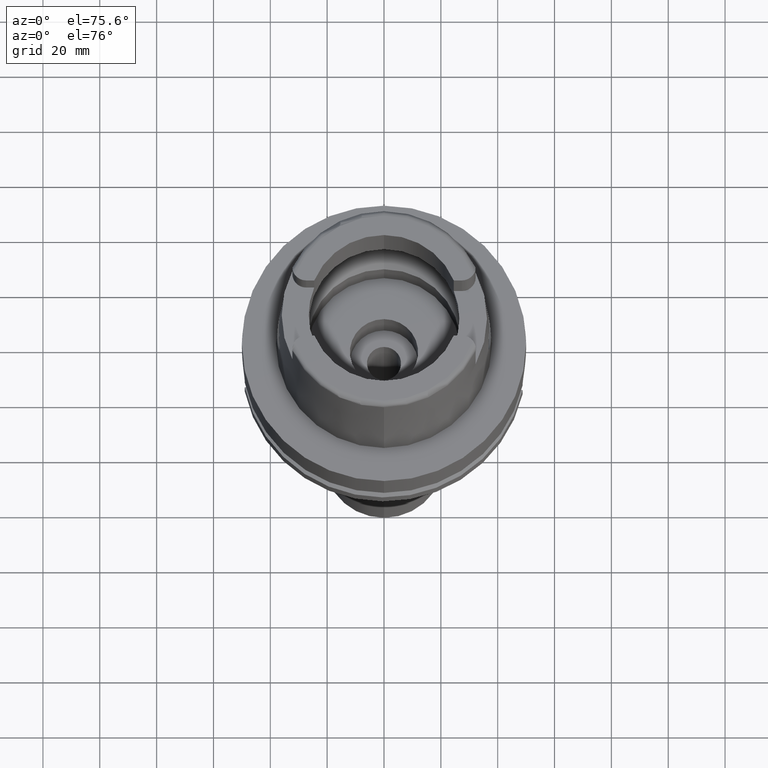
[diagram: clean part render]
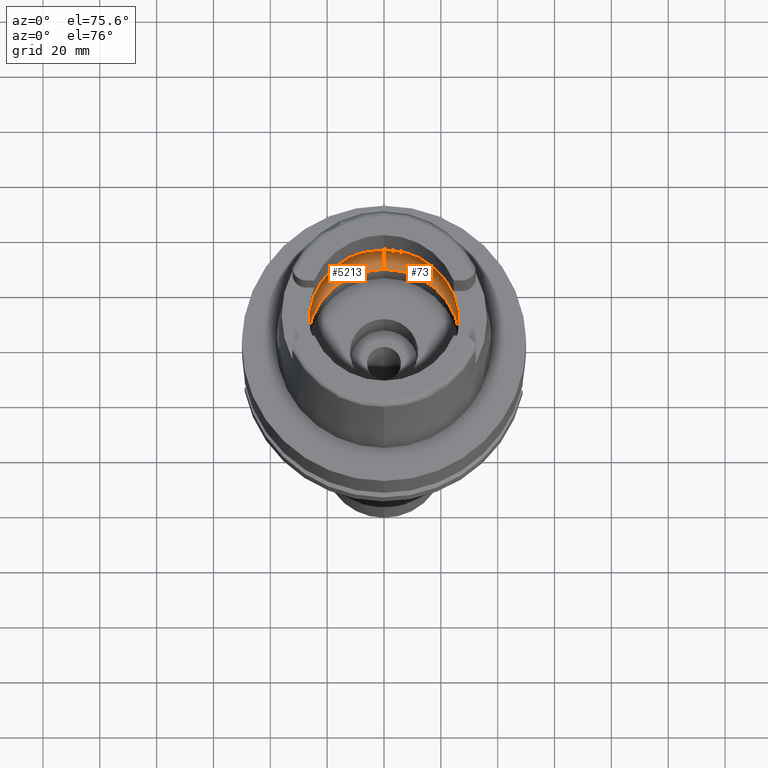
[diagram: same view with one multi-face feature highlighted, each face labeled with its STEP entity id]
A machine part, auxiliary view. The highlighted faces form ONE feature: a constant-radius fillet chain: 2 tangent blend faces with common blend radius 12 mm. The faces share edges in the B-rep.
Their STEP definitions:
[1] entity #73 (Torus):
#1 = AXIS2_PLACEMENT_3D ( 'NONE', #3776, #5508, #3349 ) ;
#73 = ADVANCED_FACE ( 'NONE', ( #1263 ), #2150, .F. ) ;
#99 = ORIENTED_EDGE ( 'NONE', *, *, #4437, .F. ) ;
#165 = AXIS2_PLACEMENT_3D ( 'NONE', #786, #5049, #2897 ) ;
#277 = VERTEX_POINT ( 'NONE', #5559 ) ;
#291 = DIRECTION ( 'NONE',  ( 0.0000000000000000000, 0.0000000000000000000, -1.000000000000000000 ) ) ;
#375 = EDGE_CURVE ( 'NONE', #4504, #3929, #483, .T. ) ;
#483 = B_SPLINE_CURVE_WITH_KNOTS ( 'NONE', 3,
 ( #3632, #4847, #2784, #4060, #5356, #1014 ),
 .UNSPECIFIED., .F., .F.,
 ( 4, 1, 1, 4 ),
 ( 0.0000000000000000000, 0.3333333333333000081, 0.6666666666667000474, 1.000000000000000000 ),
 .UNSPECIFIED. ) ;
#587 = CARTESIAN_POINT ( 'NONE',  ( 31.40918884336000616, -2.390158196043999705, 9.496624327025999790 ) ) ;
#747 = CARTESIAN_POINT ( 'NONE',  ( 0.0000000000000000000, 0.0000000000000000000, 9.496624327025999790 ) ) ;
#786 = CARTESIAN_POINT ( 'NONE',  ( 0.0000000000000000000, -19.50000000000000000, 9.496624327025999790 ) ) ;
#1014 = CARTESIAN_POINT ( 'NONE',  ( 31.48971910754000447, 0.0000000000000000000, 9.000000000000000000 ) ) ;
#1090 = DIRECTION ( 'NONE',  ( 0.0000000000000000000, 1.000000000000000000, 0.0000000000000000000 ) ) ;
#1150 = CARTESIAN_POINT ( 'NONE',  ( 31.48971910754000447, 0.0000000000000000000, 9.000000000000000000 ) ) ;
#1225 = CARTESIAN_POINT ( 'NONE',  ( 31.45843229728999901, -1.626122314408000147, 9.205188491873000700 ) ) ;
#1263 = FACE_OUTER_BOUND ( 'NONE', #4660, .T. ) ;
#1266 = CIRCLE ( 'NONE', #1812, 31.50000000000000000 ) ;
#1564 = CARTESIAN_POINT ( 'NONE',  ( 0.0000000000000000000, 19.50000000000000000, 9.496624327025999790 ) ) ;
#1574 = ORIENTED_EDGE ( 'NONE', *, *, #3975, .F. ) ;
#1739 = VERTEX_POINT ( 'NONE', #4050 ) ;
#1801 = AXIS2_PLACEMENT_3D ( 'NONE', #747, #291, #4168 ) ;
#1812 = AXIS2_PLACEMENT_3D ( 'NONE', #2779, #4446, #1090 ) ;
#1982 = CIRCLE ( 'NONE', #1, 26.89999999999999858 ) ;
#2002 = CARTESIAN_POINT ( 'NONE',  ( 31.48971910754000447, -0.2740816369240999806, 9.000000000000000000 ) ) ;
#2047 = ORIENTED_EDGE ( 'NONE', *, *, #2710, .T. ) ;
#2150 = TOROIDAL_SURFACE ( 'NONE', #4494, 19.50000000000000000, 12.00000000000000000 ) ;
#2170 = ORIENTED_EDGE ( 'NONE', *, *, #4078, .F. ) ;
#2270 = CARTESIAN_POINT ( 'NONE',  ( 0.0000000000000000000, -26.89999999999999858, 0.04993178413023999923 ) ) ;
#2375 = VERTEX_POINT ( 'NONE', #2461 ) ;
#2431 = AXIS2_PLACEMENT_3D ( 'NONE', #1564, #3278, #4957 ) ;
#2461 = CARTESIAN_POINT ( 'NONE',  ( 0.0000000000000000000, 26.89999999999999858, 0.04993178413023999923 ) ) ;
#2564 = DIRECTION ( 'NONE',  ( 0.0000000000000000000, 1.000000000000000000, 0.0000000000000000000 ) ) ;
#2597 = CIRCLE ( 'NONE', #165, 11.99999999999999822 ) ;
#2627 = CARTESIAN_POINT ( 'NONE',  ( 0.0000000000000000000, 0.0000000000000000000, 9.496624327025999790 ) ) ;
#2649 = EDGE_CURVE ( 'NONE', #3929, #4357, #5022, .T. ) ;
#2710 = EDGE_CURVE ( 'NONE', #3096, #1739, #2597, .T. ) ;
#2779 = CARTESIAN_POINT ( 'NONE',  ( 0.0000000000000000000, 0.0000000000000000000, 9.496624327025999790 ) ) ;
#2784 = CARTESIAN_POINT ( 'NONE',  ( 31.45843215351000310, 1.626125992769999806, 9.205189397203000112 ) ) ;
#2897 = DIRECTION ( 'NONE',  ( 0.0000000000000000000, -0.6166666666667049990, -0.7872243785746061429 ) ) ;
#2952 = CARTESIAN_POINT ( 'NONE',  ( 31.42817542026000410, -2.140654635826999996, 9.388263020288000860 ) ) ;
#3096 = VERTEX_POINT ( 'NONE', #2270 ) ;
#3278 = DIRECTION ( 'NONE',  ( 1.000000000000000000, 0.0000000000000000000, 0.0000000000000000000 ) ) ;
#3349 = DIRECTION ( 'NONE',  ( 0.0000000000000000000, -1.000000000000000000, 0.0000000000000000000 ) ) ;
#3403 = DIRECTION ( 'NONE',  ( 0.0000000000000000000, 0.0000000000000000000, 1.000000000000000000 ) ) ;
#3412 = CIRCLE ( 'NONE', #1801, 31.49999999999998934 ) ;
#3632 = CARTESIAN_POINT ( 'NONE',  ( 31.40918884336000616, 2.390158196043999705, 9.496624327025999790 ) ) ;
#3776 = CARTESIAN_POINT ( 'NONE',  ( 0.0000000000000000000, 0.0000000000000000000, 0.04993178413023999923 ) ) ;
#3855 = ORIENTED_EDGE ( 'NONE', *, *, #5178, .F. ) ;
#3929 = VERTEX_POINT ( 'NONE', #5441 ) ;
#3975 = EDGE_CURVE ( 'NONE', #2375, #277, #4051, .T. ) ;
#3980 = CARTESIAN_POINT ( 'NONE',  ( 31.40918884336000616, 2.390158196043999705, 9.496624327025999790 ) ) ;
#4050 = CARTESIAN_POINT ( 'NONE',  ( 0.0000000000000000000, -31.50000000000000000, 9.496624327025999790 ) ) ;
#4051 = CIRCLE ( 'NONE', #2431, 11.99999999999999822 ) ;
#4060 = CARTESIAN_POINT ( 'NONE',  ( 31.48416663622000300, 0.8216256622719000369, 9.037606172252001357 ) ) ;
#4078 = EDGE_CURVE ( 'NONE', #4357, #1739, #3412, .T. ) ;
#4168 = DIRECTION ( 'NONE',  ( 0.9971171061384295209, -0.07587803796965221503, 0.0000000000000000000 ) ) ;
#4276 = ORIENTED_EDGE ( 'NONE', *, *, #2649, .F. ) ;
#4357 = VERTEX_POINT ( 'NONE', #587 ) ;
#4437 = EDGE_CURVE ( 'NONE', #3096, #2375, #1982, .T. ) ;
#4446 = DIRECTION ( 'NONE',  ( 0.0000000000000000000, 0.0000000000000000000, -1.000000000000000000 ) ) ;
#4494 = AXIS2_PLACEMENT_3D ( 'NONE', #2627, #3403, #2564 ) ;
#4504 = VERTEX_POINT ( 'NONE', #3980 ) ;
#4660 = EDGE_LOOP ( 'NONE', ( #5474, #3855, #1574, #99, #2047, #2170, #4276 ) ) ;
#4674 = CARTESIAN_POINT ( 'NONE',  ( 31.40918884336000616, -2.390158196043999705, 9.496624327025999790 ) ) ;
#4847 = CARTESIAN_POINT ( 'NONE',  ( 31.42817530553000083, 2.140656143518000487, 9.388263675090000149 ) ) ;
#4957 = DIRECTION ( 'NONE',  ( 0.0000000000000000000, 0.6166666666667049990, -0.7872243785746061429 ) ) ;
#5022 = B_SPLINE_CURVE_WITH_KNOTS ( 'NONE', 3,
 ( #1150, #2002, #5475, #1225, #2952, #4674 ),
 .UNSPECIFIED., .F., .F.,
 ( 4, 1, 1, 4 ),
 ( 0.0000000000000000000, 0.3333333333333000081, 0.6666666666667000474, 1.000000000000000000 ),
 .UNSPECIFIED. ) ;
#5049 = DIRECTION ( 'NONE',  ( -1.000000000000000000, 0.0000000000000000000, 0.0000000000000000000 ) ) ;
#5178 = EDGE_CURVE ( 'NONE', #277, #4504, #1266, .T. ) ;
#5356 = CARTESIAN_POINT ( 'NONE',  ( 31.48971910754000447, 0.2740808193429000172, 9.000000000000000000 ) ) ;
#5441 = CARTESIAN_POINT ( 'NONE',  ( 31.48971910754000447, 0.0000000000000000000, 9.000000000000000000 ) ) ;
#5474 = ORIENTED_EDGE ( 'NONE', *, *, #375, .F. ) ;
#5475 = CARTESIAN_POINT ( 'NONE',  ( 31.48416657243999950, -0.8216274657312000462, 9.037606582851999804 ) ) ;
#5508 = DIRECTION ( 'NONE',  ( 0.0000000000000000000, 0.0000000000000000000, 1.000000000000000000 ) ) ;
#5559 = CARTESIAN_POINT ( 'NONE',  ( 0.0000000000000000000, 31.50000000000000000, 9.496624327025999790 ) ) ;
[2] entity #5213 (Torus):
#7 = ORIENTED_EDGE ( 'NONE', *, *, #4390, .F. ) ;
#21 = CARTESIAN_POINT ( 'NONE',  ( -31.48971910754000447, 0.0000000000000000000, 9.000000000000000000 ) ) ;
#119 = EDGE_CURVE ( 'NONE', #4056, #277, #3864, .T. ) ;
#128 = CARTESIAN_POINT ( 'NONE',  ( -31.45843235400999660, -1.626121130666000170, 9.205188134635001518 ) ) ;
#165 = AXIS2_PLACEMENT_3D ( 'NONE', #786, #5049, #2897 ) ;
#238 = EDGE_LOOP ( 'NONE', ( #3280, #4169, #1729, #4026, #2783, #7, #1229 ) ) ;
#277 = VERTEX_POINT ( 'NONE', #5559 ) ;
#319 = CARTESIAN_POINT ( 'NONE',  ( 0.0000000000000000000, 0.0000000000000000000, 0.04993178413023999923 ) ) ;
#331 = CARTESIAN_POINT ( 'NONE',  ( -31.42817526838999953, 2.140656631636999929, 9.388263887083001080 ) ) ;
#534 = CARTESIAN_POINT ( 'NONE',  ( 0.0000000000000000000, 0.0000000000000000000, 9.496624327025999790 ) ) ;
#589 = EDGE_CURVE ( 'NONE', #2375, #3096, #4776, .T. ) ;
#786 = CARTESIAN_POINT ( 'NONE',  ( 0.0000000000000000000, -19.50000000000000000, 9.496624327025999790 ) ) ;
#787 = CARTESIAN_POINT ( 'NONE',  ( -31.40918884336000616, 2.390158196043999705, 9.496624327025999790 ) ) ;
#876 = CARTESIAN_POINT ( 'NONE',  ( -31.40918884336000616, -2.390158196043999705, 9.496624327025999790 ) ) ;
#1035 = VERTEX_POINT ( 'NONE', #876 ) ;
#1114 = DIRECTION ( 'NONE',  ( 0.0000000000000000000, 1.000000000000000000, 0.0000000000000000000 ) ) ;
#1229 = ORIENTED_EDGE ( 'NONE', *, *, #3786, .F. ) ;
#1291 = DIRECTION ( 'NONE',  ( -0.9971171061384295209, 0.07587803796965221503, 0.0000000000000000000 ) ) ;
#1390 = VERTEX_POINT ( 'NONE', #2731 ) ;
#1480 = CARTESIAN_POINT ( 'NONE',  ( -31.40918884336000616, 2.390158196043999705, 9.496624327025999790 ) ) ;
#1564 = CARTESIAN_POINT ( 'NONE',  ( 0.0000000000000000000, 19.50000000000000000, 9.496624327025999790 ) ) ;
#1627 = TOROIDAL_SURFACE ( 'NONE', #5150, 19.50000000000000000, 12.00000000000000000 ) ;
#1729 = ORIENTED_EDGE ( 'NONE', *, *, #589, .F. ) ;
#1739 = VERTEX_POINT ( 'NONE', #4050 ) ;
#1914 = B_SPLINE_CURVE_WITH_KNOTS ( 'NONE', 3,
 ( #3831, #4675, #3321, #5562, #331, #787 ),
 .UNSPECIFIED., .F., .F.,
 ( 4, 1, 1, 4 ),
 ( 0.0000000000000000000, 0.3333333333333000081, 0.6666666666667000474, 1.000000000000000000 ),
 .UNSPECIFIED. ) ;
#2270 = CARTESIAN_POINT ( 'NONE',  ( 0.0000000000000000000, -26.89999999999999858, 0.04993178413023999923 ) ) ;
#2375 = VERTEX_POINT ( 'NONE', #2461 ) ;
#2388 = DIRECTION ( 'NONE',  ( 0.0000000000000000000, 1.000000000000000000, 0.0000000000000000000 ) ) ;
#2431 = AXIS2_PLACEMENT_3D ( 'NONE', #1564, #3278, #4957 ) ;
#2439 = CIRCLE ( 'NONE', #5419, 31.50000000000000000 ) ;
#2459 = DIRECTION ( 'NONE',  ( 0.0000000000000000000, 0.0000000000000000000, -1.000000000000000000 ) ) ;
#2461 = CARTESIAN_POINT ( 'NONE',  ( 0.0000000000000000000, 26.89999999999999858, 0.04993178413023999923 ) ) ;
#2597 = CIRCLE ( 'NONE', #165, 11.99999999999999822 ) ;
#2701 = AXIS2_PLACEMENT_3D ( 'NONE', #319, #3258, #1114 ) ;
#2710 = EDGE_CURVE ( 'NONE', #3096, #1739, #2597, .T. ) ;
#2731 = CARTESIAN_POINT ( 'NONE',  ( -31.48971910754000447, 0.0000000000000000000, 9.000000000000000000 ) ) ;
#2783 = ORIENTED_EDGE ( 'NONE', *, *, #119, .F. ) ;
#2897 = DIRECTION ( 'NONE',  ( 0.0000000000000000000, -0.6166666666667049990, -0.7872243785746061429 ) ) ;
#3051 = AXIS2_PLACEMENT_3D ( 'NONE', #534, #3948, #1291 ) ;
#3070 = CARTESIAN_POINT ( 'NONE',  ( -31.48416659375000037, -0.8216262390445000507, 9.037606438216000626 ) ) ;
#3096 = VERTEX_POINT ( 'NONE', #2270 ) ;
#3258 = DIRECTION ( 'NONE',  ( 0.0000000000000000000, 0.0000000000000000000, 1.000000000000000000 ) ) ;
#3278 = DIRECTION ( 'NONE',  ( 1.000000000000000000, 0.0000000000000000000, 0.0000000000000000000 ) ) ;
#3280 = ORIENTED_EDGE ( 'NONE', *, *, #4419, .F. ) ;
#3321 = CARTESIAN_POINT ( 'NONE',  ( -31.48416661469000033, 0.8216269012393999649, 9.037606318336999678 ) ) ;
#3595 = FACE_OUTER_BOUND ( 'NONE', #238, .T. ) ;
#3786 = EDGE_CURVE ( 'NONE', #1035, #1390, #3897, .T. ) ;
#3831 = CARTESIAN_POINT ( 'NONE',  ( -31.48971910754000447, 0.0000000000000000000, 9.000000000000000000 ) ) ;
#3864 = CIRCLE ( 'NONE', #3051, 31.49999999999998934 ) ;
#3886 = CARTESIAN_POINT ( 'NONE',  ( -31.48971910754000447, -0.2740811097498000448, 9.000000000000000000 ) ) ;
#3897 = B_SPLINE_CURVE_WITH_KNOTS ( 'NONE', 3,
 ( #4844, #3972, #128, #3070, #3886, #21 ),
 .UNSPECIFIED., .F., .F.,
 ( 4, 1, 1, 4 ),
 ( 0.0000000000000000000, 0.3333333333333000081, 0.6666666666667000474, 1.000000000000000000 ),
 .UNSPECIFIED. ) ;
#3948 = DIRECTION ( 'NONE',  ( 0.0000000000000000000, 0.0000000000000000000, -1.000000000000000000 ) ) ;
#3972 = CARTESIAN_POINT ( 'NONE',  ( -31.42817545703999826, -2.140654152532999621, 9.388262810390001434 ) ) ;
#3975 = EDGE_CURVE ( 'NONE', #2375, #277, #4051, .T. ) ;
#4026 = ORIENTED_EDGE ( 'NONE', *, *, #3975, .T. ) ;
#4050 = CARTESIAN_POINT ( 'NONE',  ( 0.0000000000000000000, -31.50000000000000000, 9.496624327025999790 ) ) ;
#4051 = CIRCLE ( 'NONE', #2431, 11.99999999999999822 ) ;
#4056 = VERTEX_POINT ( 'NONE', #1480 ) ;
#4085 = CARTESIAN_POINT ( 'NONE',  ( 0.0000000000000000000, 0.0000000000000000000, 9.496624327025999790 ) ) ;
#4169 = ORIENTED_EDGE ( 'NONE', *, *, #2710, .F. ) ;
#4179 = DIRECTION ( 'NONE',  ( 0.0000000000000000000, -1.000000000000000000, 0.0000000000000000000 ) ) ;
#4390 = EDGE_CURVE ( 'NONE', #1390, #4056, #1914, .T. ) ;
#4419 = EDGE_CURVE ( 'NONE', #1739, #1035, #2439, .T. ) ;
#4675 = CARTESIAN_POINT ( 'NONE',  ( -31.48971910754000447, 0.2740813517951999900, 9.000000000000000000 ) ) ;
#4776 = CIRCLE ( 'NONE', #2701, 26.89999999999999858 ) ;
#4844 = CARTESIAN_POINT ( 'NONE',  ( -31.40918884336000616, -2.390158196043999705, 9.496624327025999790 ) ) ;
#4957 = DIRECTION ( 'NONE',  ( 0.0000000000000000000, 0.6166666666667049990, -0.7872243785746061429 ) ) ;
#4981 = DIRECTION ( 'NONE',  ( 0.0000000000000000000, 0.0000000000000000000, 1.000000000000000000 ) ) ;
#5049 = DIRECTION ( 'NONE',  ( -1.000000000000000000, 0.0000000000000000000, 0.0000000000000000000 ) ) ;
#5150 = AXIS2_PLACEMENT_3D ( 'NONE', #4085, #4981, #2388 ) ;
#5166 = CARTESIAN_POINT ( 'NONE',  ( 0.0000000000000000000, 0.0000000000000000000, 9.496624327025999790 ) ) ;
#5213 = ADVANCED_FACE ( 'NONE', ( #3595 ), #1627, .F. ) ;
#5419 = AXIS2_PLACEMENT_3D ( 'NONE', #5166, #2459, #4179 ) ;
#5559 = CARTESIAN_POINT ( 'NONE',  ( 0.0000000000000000000, 31.50000000000000000, 9.496624327025999790 ) ) ;
#5562 = CARTESIAN_POINT ( 'NONE',  ( -31.45843209623000547, 1.626127188330999784, 9.205189758010000389 ) ) ;